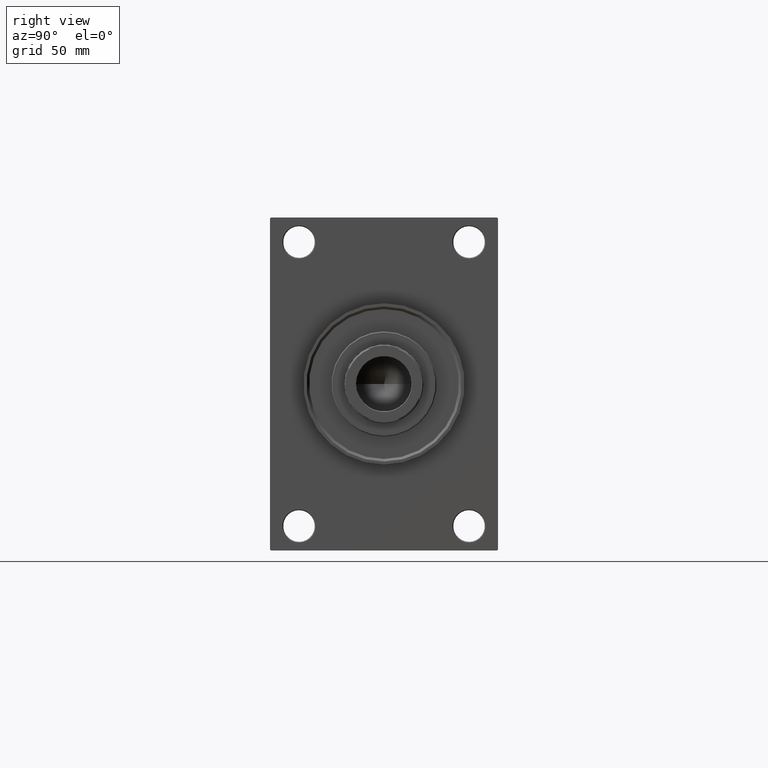
[diagram: clean part render]
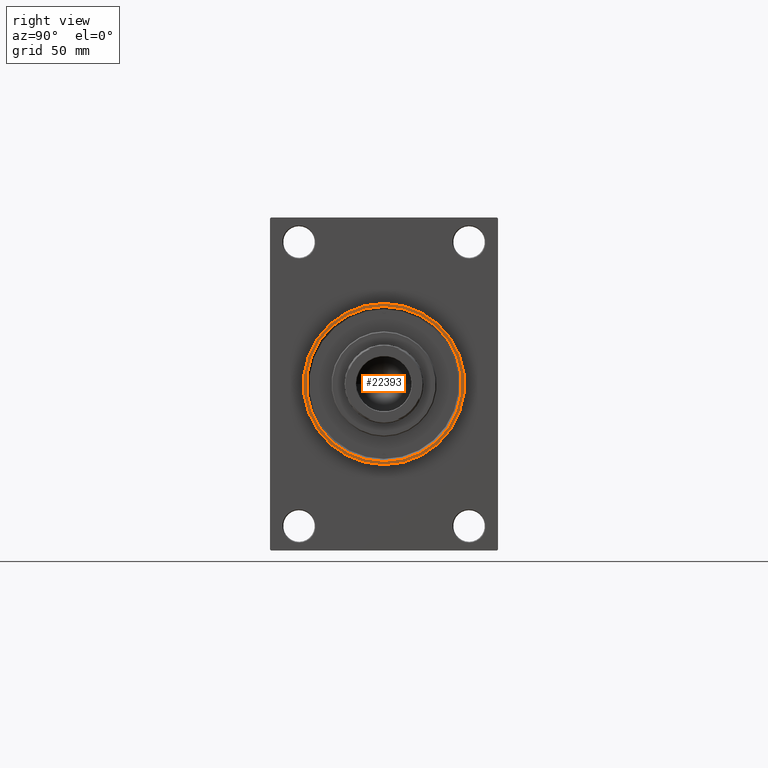
[diagram: same view with one face highlighted and labeled with its STEP entity id]
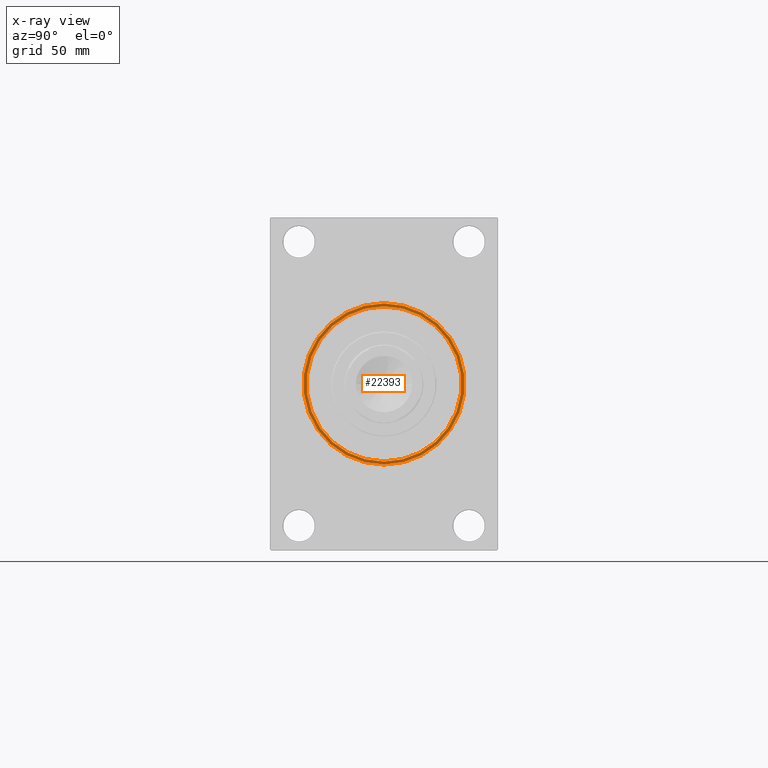
[diagram: x-ray of the same camera — body ghosted, the highlighted face saturated]
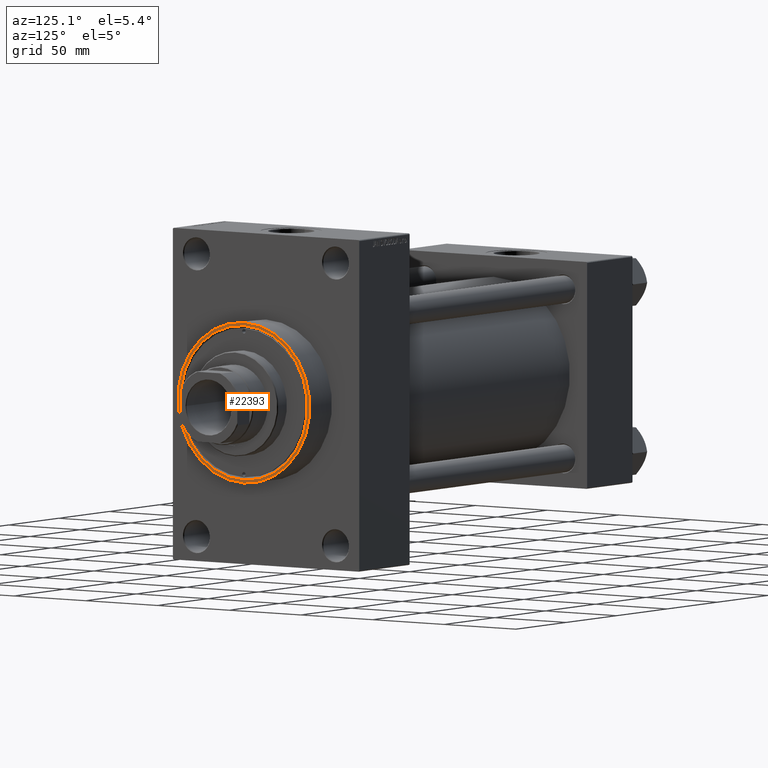
[diagram: same view with one face highlighted and labeled with its STEP entity id]
A machine part, right view. The second image highlights one B-rep face of the part: STEP entity #22393.
The next image is the same camera in x-ray: the body ghosted, the highlighted face saturated — about 0% of this face is hidden behind the body in this view.
A second angle (auxiliary view) of the same face is appended — the face is thin or edge-on in the first view.
In plain terms, the highlighted planar face has unit normal (1, 0, 0).
Its self-contained STEP definition (entity closure, byte-faithful):
#375 = EDGE_CURVE ( 'NONE', #31095, #16402, #12529, .T. ) ;
#2960 = DIRECTION ( 'NONE',  ( 0.000000000000000000, 0.000000000000000000, -1.000000000000000000 ) ) ;
#7543 = DIRECTION ( 'NONE',  ( 0.000000000000000000, 0.000000000000000000, -1.000000000000000000 ) ) ;
#7880 = ORIENTED_EDGE ( 'NONE', *, *, #14404, .T. ) ;
#8258 = DIRECTION ( 'NONE',  ( 1.000000000000000000, 0.000000000000000000, 0.000000000000000000 ) ) ;
#10706 = DIRECTION ( 'NONE',  ( -1.000000000000000000, -0.000000000000000000, -0.000000000000000000 ) ) ;
#10856 = CARTESIAN_POINT ( 'NONE',  ( 293.0000000000000000, 5.419062086227039772E-15, 44.25000000000001421 ) ) ;
#12529 = CIRCLE ( 'NONE', #18742, 46.00000000000000000 ) ;
#13744 = EDGE_LOOP ( 'NONE', ( #7880, #29509 ) ) ;
#14404 = EDGE_CURVE ( 'NONE', #32093, #44257, #34518, .T. ) ;
#14411 = DIRECTION ( 'NONE',  ( 1.000000000000000000, 0.000000000000000000, 0.000000000000000000 ) ) ;
#16402 = VERTEX_POINT ( 'NONE', #26064 ) ;
#16772 = CARTESIAN_POINT ( 'NONE',  ( 293.0000000000000000, 0.000000000000000000, 46.00000000000000000 ) ) ;
#16978 = CIRCLE ( 'NONE', #34754, 44.25000000000001421 ) ;
#17180 = CIRCLE ( 'NONE', #38820, 46.00000000000000000 ) ;
#17665 = PLANE ( 'NONE',  #30200 ) ;
#17707 = ORIENTED_EDGE ( 'NONE', *, *, #375, .T. ) ;
#18742 = AXIS2_PLACEMENT_3D ( 'NONE', #35909, #8258, #7543 ) ;
#20313 = DIRECTION ( 'NONE',  ( -1.000000000000000000, -0.000000000000000000, -0.000000000000000000 ) ) ;
#21300 = FACE_BOUND ( 'NONE', #13744, .T. ) ;
#22393 = ADVANCED_FACE ( 'NONE', ( #21300, #35582 ), #17665, .T. ) ;
#23957 = DIRECTION ( 'NONE',  ( 0.000000000000000000, 0.000000000000000000, -1.000000000000000000 ) ) ;
#24389 = EDGE_CURVE ( 'NONE', #44257, #32093, #16978, .T. ) ;
#25579 = DIRECTION ( 'NONE',  ( 0.000000000000000000, 0.000000000000000000, -1.000000000000000000 ) ) ;
#26064 = CARTESIAN_POINT ( 'NONE',  ( 293.0000000000000000, 5.633375276077824704E-15, -46.00000000000000000 ) ) ;
#27832 = EDGE_CURVE ( 'NONE', #16402, #31095, #17180, .T. ) ;
#29509 = ORIENTED_EDGE ( 'NONE', *, *, #24389, .T. ) ;
#30200 = AXIS2_PLACEMENT_3D ( 'NONE', #47180, #37014, #32900 ) ;
#31095 = VERTEX_POINT ( 'NONE', #16772 ) ;
#32093 = VERTEX_POINT ( 'NONE', #40726 ) ;
#32850 = EDGE_LOOP ( 'NONE', ( #17707, #45840 ) ) ;
#32900 = DIRECTION ( 'NONE',  ( 0.000000000000000000, 0.000000000000000000, -1.000000000000000000 ) ) ;
#32998 = CARTESIAN_POINT ( 'NONE',  ( 293.0000000000000000, 0.000000000000000000, 0.000000000000000000 ) ) ;
#34518 = CIRCLE ( 'NONE', #46876, 44.25000000000001421 ) ;
#34754 = AXIS2_PLACEMENT_3D ( 'NONE', #42572, #20313, #23957 ) ;
#35582 = FACE_OUTER_BOUND ( 'NONE', #32850, .T. ) ;
#35909 = CARTESIAN_POINT ( 'NONE',  ( 293.0000000000000000, 0.000000000000000000, 0.000000000000000000 ) ) ;
#37014 = DIRECTION ( 'NONE',  ( 1.000000000000000000, 0.000000000000000000, 0.000000000000000000 ) ) ;
#38820 = AXIS2_PLACEMENT_3D ( 'NONE', #44189, #14411, #25579 ) ;
#40726 = CARTESIAN_POINT ( 'NONE',  ( 293.0000000000000000, 0.000000000000000000, -44.25000000000001421 ) ) ;
#42572 = CARTESIAN_POINT ( 'NONE',  ( 293.0000000000000000, 0.000000000000000000, 0.000000000000000000 ) ) ;
#44189 = CARTESIAN_POINT ( 'NONE',  ( 293.0000000000000000, 0.000000000000000000, 0.000000000000000000 ) ) ;
#44257 = VERTEX_POINT ( 'NONE', #10856 ) ;
#45840 = ORIENTED_EDGE ( 'NONE', *, *, #27832, .T. ) ;
#46876 = AXIS2_PLACEMENT_3D ( 'NONE', #32998, #10706, #2960 ) ;
#47180 = CARTESIAN_POINT ( 'NONE',  ( 293.0000000000000000, 0.000000000000000000, 0.000000000000000000 ) ) ;